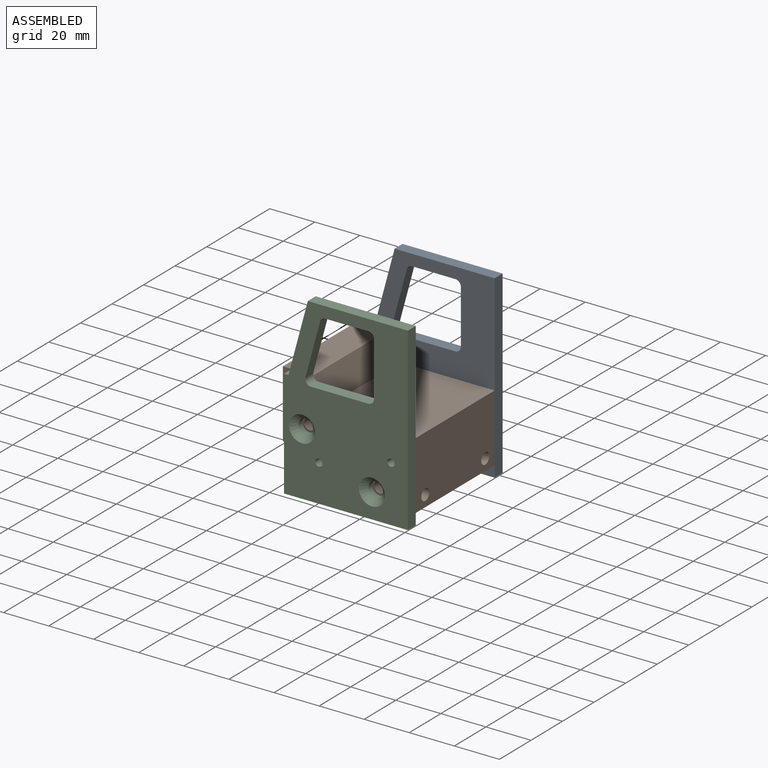
[diagram: assembled view]
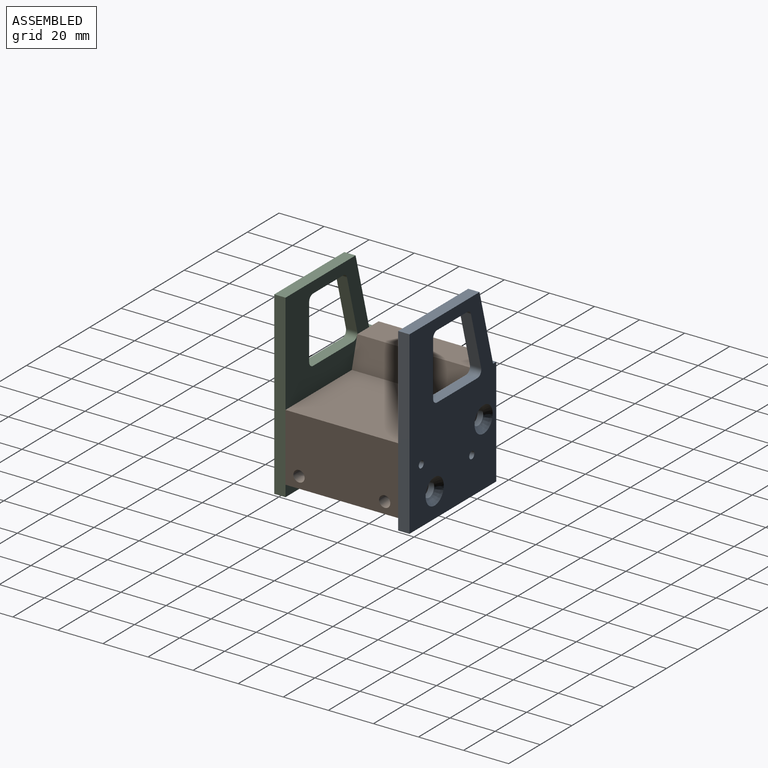
[diagram: assembled view, second angle]
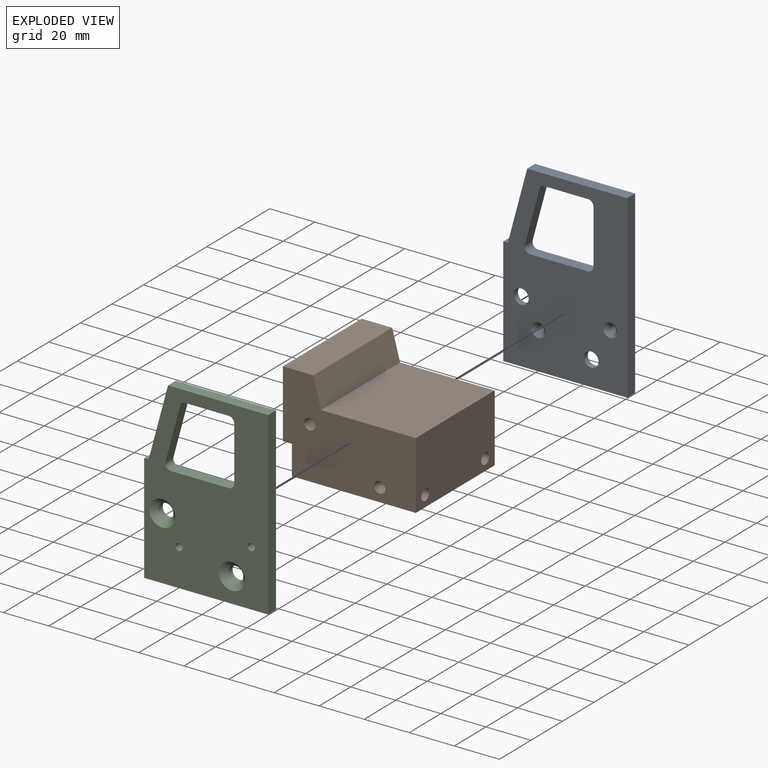
[diagram: exploded view]
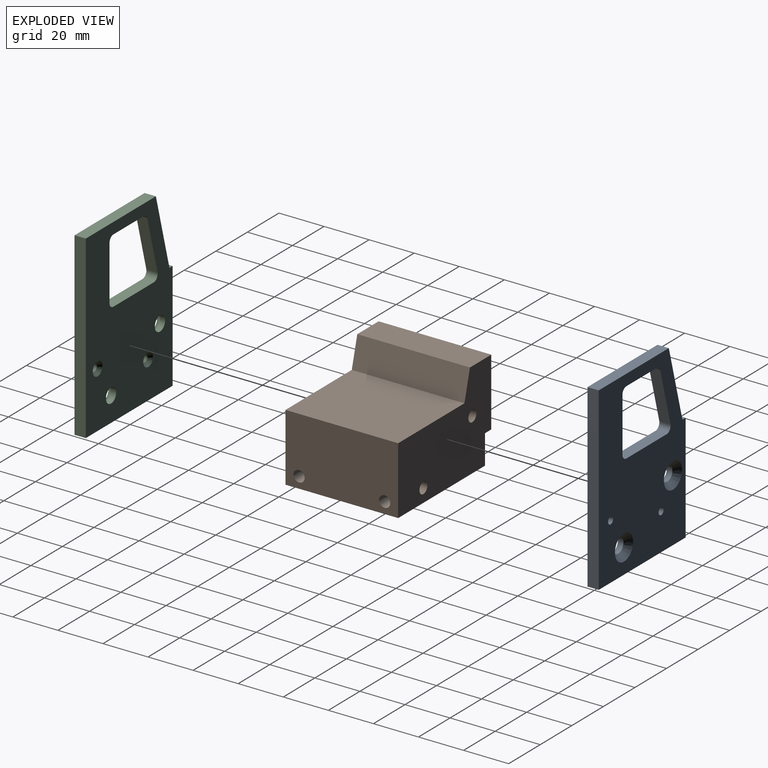
[diagram: exploded view, second angle]
ASSEMBLY  parts=3 mates=2
PART A: 24 faces, bbox 5x80x55 mm
  f0: plane 80x5mm, normal (0,0,1), area 400mm2, adj f1,f17,f18,f19
  f1: plane 55x5mm, normal (0,-1,0), area 275mm2, adj f0,f2,f18,f19
  f2: plane 48x5mm, normal (0,0,-1), area 240mm2, adj f1,f3,f18,f19
  f3: plane 5x2mm, normal (0,1,0), area 10mm2, adj f2,f4,f18,f19
  f4: plane 32x8.6mm, normal (0,0.26,-0.97), area 165.7mm2, adj f3,f17,f18,f19
  f5: cylinder r=2.5mm len=5mm, axis (-1,0,0), area 19.6mm2, adj f6,f12,f18,f19
  f6: plane 19.08x5mm, normal (0,-1,0), area 95.4mm2, adj f5,f7,f18,f19
  f7: cylinder r=2.5mm len=5mm, axis (-1,0,0), area 16.4mm2, adj f6,f8,f18,f19
  f8: plane 24x6.45mm, normal (0,-0.26,0.97), area 124.3mm2, adj f7,f9,f18,f19
  f9: cylinder r=2.5mm len=5mm, axis (-1,0,0), area 22.9mm2, adj f8,f10,f18,f19
  f10: plane 25.53x5mm, normal (0,1,0), area 127.6mm2, adj f9,f11,f18,f19
  f11: cylinder r=2.5mm len=5mm, axis (-1,0,0), area 19.6mm2, adj f10,f12,f18,f19
  f12: plane 24x5mm, normal (0,0,-1), area 120mm2, adj f5,f11,f18,f19
  f13: cylinder r=1.59mm len=3.5mm, axis (-1,0,0), area 34.9mm2, adj f18,f22
  f14: cylinder r=3.25mm len=6.5mm, axis (-1,0,0), area 51.1mm2, adj f19,f20
  f15: cylinder r=1.59mm len=3.5mm, axis (-1,0,0), area 34.9mm2, adj f18,f23
  f16: cylinder r=3.25mm len=6.5mm, axis (-1,0,0), area 51.1mm2, adj f19,f21
  f17: plane 44.4x5mm, normal (0,1,0), area 222mm2, adj f0,f4,f18,f19
  f18: plane 80x55mm, normal (1,0,0), area 3186.3mm2, adj f0,f1,f2,f3,f4,f5,f6,f7
  f19: plane 80x55mm, normal (-1,0,0), area 3283.6mm2, adj f0,f1,f2,f3,f4,f5,f6,f7
  f20: cone r=3.25mm half-angle=45deg, axis (1,0,0), area 100mm2, adj f14,f18
  f21: cone r=3.25mm half-angle=45deg, axis (1,0,0), area 100mm2, adj f16,f18
  f22: cone r=3.09mm half-angle=45deg, axis (-1,0,0), area 31.2mm2, adj f13,f19
  f23: cone r=3.09mm half-angle=45deg, axis (-1,0,0), area 31.2mm2, adj f15,f19
PART B: 98 faces, bbox 60x50x43 mm
  f0: plane 25x1.07mm, normal (-1,0,0), area 26.7mm2, adj f15,f16,f57,f95
  f1: plane 25x1.07mm, normal (-1,0,0), area 26.7mm2, adj f15,f16,f92,f96
  f2: plane 25x1.07mm, normal (-1,0,0), area 26.7mm2, adj f15,f16,f89,f93
  f3: plane 25x1.07mm, normal (-1,0,0), area 26.7mm2, adj f15,f16,f86,f90
  f4: plane 25x1.07mm, normal (-1,0,0), area 26.7mm2, adj f15,f16,f83,f87
  f5: plane 25x1.07mm, normal (-1,0,0), area 26.7mm2, adj f15,f16,f80,f84
  f6: plane 25x1.07mm, normal (-1,0,0), area 26.7mm2, adj f15,f16,f77,f81
  f7: plane 25x1.07mm, normal (-1,0,0), area 26.7mm2, adj f15,f16,f74,f78
  f8: plane 25x1.07mm, normal (-1,0,0), area 26.7mm2, adj f15,f16,f52,f72
  f9: plane 25x1.07mm, normal (-1,0,0), area 26.7mm2, adj f15,f16,f69,f71
  f10: plane 25x1.07mm, normal (-1,0,0), area 26.7mm2, adj f15,f16,f66,f68
  f11: plane 25x1.07mm, normal (-1,0,0), area 26.7mm2, adj f15,f16,f63,f65
  f12: plane 25x1.07mm, normal (-1,0,0), area 26.7mm2, adj f15,f16,f60,f62
  f13: plane 25x1.07mm, normal (-1,0,0), area 26.7mm2, adj f15,f16,f59,f75
  f14: plane 25x1.07mm, normal (-1,0,0), area 26.7mm2, adj f15,f16,f54,f56
  f15: plane 30x1mm, normal (0,0,1), area 23.2mm2, adj f0,f1,f2,f3,f4,f5,f6,f7
  f16: plane 50x5mm, normal (0,0,-1), area 223.2mm2, adj f0,f1,f2,f3,f4,f5,f6,f7
  f17: plane 59x43mm, normal (0,-1,0), area 1877.1mm2, adj f16,f21,f22,f23,f24,f25,f26,f27
  f18: plane 59x43mm, normal (0,1,0), area 1877.1mm2, adj f16,f21,f22,f23,f24,f25,f26,f27
  f19: cylinder r=2.5mm len=11mm, axis (0,0,-1), area 129.8mm2, adj f22,f40,f45
  f20: cylinder r=2.5mm len=11mm, axis (0,0,-1), area 129.8mm2, adj f22,f41,f43
  f21: plane 50x13mm, normal (-1,0,0), area 610.7mm2, adj f16,f17,f18,f22,f47,f49
  f22: plane 55x50mm, normal (0,0,-1), area 2671.5mm2, adj f17,f18,f19,f20,f21,f23,f37,f39
  f23: plane 50x30mm, normal (1,0,0), area 1460.7mm2, adj f17,f18,f22,f24,f43,f45
  f24: plane 50x42mm, normal (0,0,1), area 2100mm2, adj f17,f18,f23,f25
  f25: plane 50x13mm, normal (0.97,0,0.26), area 672.9mm2, adj f17,f18,f24,f26
  f26: plane 50x13.52mm, normal (0,0,1), area 675.8mm2, adj f17,f18,f25,f27
  f27: plane 50x30mm, normal (-1,0,0), area 750mm2, adj f15,f16,f17,f18,f26,f50,f51
  f28: cone r=0mm half-angle=59deg, axis (0,-1,0), area 22.9mm2, adj f29
  f29: cylinder r=2.5mm len=11mm, axis (0,-1,0), area 172.8mm2, adj f17,f28
  f30: cone r=0mm half-angle=59deg, axis (0,-1,0), area 22.9mm2, adj f31
  f31: cylinder r=2.5mm len=11mm, axis (0,-1,0), area 172.8mm2, adj f17,f30
  f32: cone r=0mm half-angle=59deg, axis (0,1,0), area 22.9mm2, adj f33
  f33: cylinder r=2.5mm len=11mm, axis (0,1,0), area 172.8mm2, adj f18,f32
  f34: cone r=0mm half-angle=59deg, axis (0,1,0), area 22.9mm2, adj f35
  f35: cylinder r=2.5mm len=11mm, axis (0,1,0), area 172.8mm2, adj f18,f34
  f36: cone r=0mm half-angle=59deg, axis (0,0,-1), area 22.9mm2, adj f37
  f37: cylinder r=2.5mm len=11mm, axis (0,0,-1), area 172.8mm2, adj f22,f36
  f38: cone r=0mm half-angle=59deg, axis (0,0,-1), area 22.9mm2, adj f39
  f39: cylinder r=2.5mm len=11mm, axis (0,0,-1), area 172.8mm2, adj f22,f38
  f40: cone r=0mm half-angle=59deg, axis (0,0,-1), area 22.9mm2, adj f19
  f41: cone r=0mm half-angle=59deg, axis (0,0,-1), area 22.9mm2, adj f20
  f42: cone r=0mm half-angle=59deg, axis (1,0,0), area 22.9mm2, adj f43
  f43: cylinder r=2.5mm len=11mm, axis (1,0,0), area 129.8mm2, adj f20,f23,f42
  f44: cone r=0mm half-angle=59deg, axis (1,0,0), area 22.9mm2, adj f45
  f45: cylinder r=2.5mm len=11mm, axis (1,0,0), area 129.8mm2, adj f19,f23,f44
  f46: cone r=0mm half-angle=59deg, axis (-1,0,0), area 22.9mm2, adj f47
  f47: cylinder r=2.5mm len=11mm, axis (-1,0,0), area 172.8mm2, adj f21,f46
  f48: cone r=0mm half-angle=59deg, axis (-1,0,0), area 22.9mm2, adj f49
  f49: cylinder r=2.5mm len=11mm, axis (-1,0,0), area 172.8mm2, adj f21,f48
  f50: plane 25x0.14mm, normal (0,1,0), area 3.4mm2, adj f15,f16,f27,f55
  f51: plane 25x0.14mm, normal (0,-1,0), area 3.4mm2, adj f15,f16,f27,f53
  f52: plane 25x0.81mm, normal (-0.42,-0.91,0), area 22.2mm2, adj f8,f15,f16,f53
  f53: cylinder r=0.1mm len=25mm, axis (0,0,-1), area 2.8mm2, adj f15,f16,f51,f52
  f54: plane 25x0.81mm, normal (-0.42,0.91,0), area 22.2mm2, adj f14,f15,f16,f55
  f55: cylinder r=0.1mm len=25mm, axis (0,0,-1), area 2.8mm2, adj f15,f16,f50,f54
  f56: plane 25x0.81mm, normal (-0.42,-0.91,0), area 22.2mm2, adj f14,f15,f16,f58
  f57: plane 25x0.81mm, normal (-0.42,0.91,0), area 22.2mm2, adj f0,f15,f16,f58
  f58: cylinder r=0.1mm len=25mm, axis (0,0,-1), area 5.7mm2, adj f15,f16,f56,f57
  f59: plane 25x0.81mm, normal (-0.42,-0.91,0), area 22.2mm2, adj f13,f15,f16,f61
  f60: plane 25x0.81mm, normal (-0.42,0.91,0), area 22.2mm2, adj f12,f15,f16,f61
  f61: cylinder r=0.1mm len=25mm, axis (0,0,-1), area 5.7mm2, adj f15,f16,f59,f60
  f62: plane 25x0.81mm, normal (-0.42,-0.91,0), area 22.2mm2, adj f12,f15,f16,f64
  f63: plane 25x0.81mm, normal (-0.42,0.91,0), area 22.2mm2, adj f11,f15,f16,f64
  f64: cylinder r=0.1mm len=25mm, axis (0,0,-1), area 5.7mm2, adj f15,f16,f62,f63
  f65: plane 25x0.81mm, normal (-0.42,-0.91,0), area 22.2mm2, adj f11,f15,f16,f67
  f66: plane 25x0.81mm, normal (-0.42,0.91,0), area 22.2mm2, adj f10,f15,f16,f67
  f67: cylinder r=0.1mm len=25mm, axis (0,0,-1), area 5.7mm2, adj f15,f16,f65,f66
  f68: plane 25x0.81mm, normal (-0.42,-0.91,0), area 22.2mm2, adj f10,f15,f16,f70
  f69: plane 25x0.81mm, normal (-0.42,0.91,0), area 22.2mm2, adj f9,f15,f16,f70
  f70: cylinder r=0.1mm len=25mm, axis (0,0,-1), area 5.7mm2, adj f15,f16,f68,f69
  f71: plane 25x0.81mm, normal (-0.42,-0.91,0), area 22.2mm2, adj f9,f15,f16,f73
  f72: plane 25x0.81mm, normal (-0.42,0.91,0), area 22.2mm2, adj f8,f15,f16,f73
  f73: cylinder r=0.1mm len=25mm, axis (0,0,-1), area 5.7mm2, adj f15,f16,f71,f72
  f74: plane 25x0.81mm, normal (-0.42,-0.91,0), area 22.2mm2, adj f7,f15,f16,f76
  f75: plane 25x0.81mm, normal (-0.42,0.91,0), area 22.2mm2, adj f13,f15,f16,f76
  f76: cylinder r=0.1mm len=25mm, axis (0,0,-1), area 5.7mm2, adj f15,f16,f74,f75
  f77: plane 25x0.81mm, normal (-0.42,-0.91,0), area 22.2mm2, adj f6,f15,f16,f79
  f78: plane 25x0.81mm, normal (-0.42,0.91,0), area 22.2mm2, adj f7,f15,f16,f79
  f79: cylinder r=0.1mm len=25mm, axis (0,0,-1), area 5.7mm2, adj f15,f16,f77,f78
  f80: plane 25x0.81mm, normal (-0.42,-0.91,0), area 22.2mm2, adj f5,f15,f16,f82
  f81: plane 25x0.81mm, normal (-0.42,0.91,0), area 22.2mm2, adj f6,f15,f16,f82
  f82: cylinder r=0.1mm len=25mm, axis (0,0,-1), area 5.7mm2, adj f15,f16,f80,f81
  f83: plane 25x0.81mm, normal (-0.42,-0.91,0), area 22.2mm2, adj f4,f15,f16,f85
  f84: plane 25x0.81mm, normal (-0.42,0.91,0), area 22.2mm2, adj f5,f15,f16,f85
  f85: cylinder r=0.1mm len=25mm, axis (0,0,-1), area 5.7mm2, adj f15,f16,f83,f84
  f86: plane 25x0.81mm, normal (-0.42,-0.91,0), area 22.2mm2, adj f3,f15,f16,f88
  f87: plane 25x0.81mm, normal (-0.42,0.91,0), area 22.2mm2, adj f4,f15,f16,f88
  f88: cylinder r=0.1mm len=25mm, axis (0,0,-1), area 5.7mm2, adj f15,f16,f86,f87
  f89: plane 25x0.81mm, normal (-0.42,-0.91,0), area 22.2mm2, adj f2,f15,f16,f91
  f90: plane 25x0.81mm, normal (-0.42,0.91,0), area 22.2mm2, adj f3,f15,f16,f91
  f91: cylinder r=0.1mm len=25mm, axis (0,0,-1), area 5.7mm2, adj f15,f16,f89,f90
  f92: plane 25x0.81mm, normal (-0.42,-0.91,0), area 22.2mm2, adj f1,f15,f16,f94
  f93: plane 25x0.81mm, normal (-0.42,0.91,0), area 22.2mm2, adj f2,f15,f16,f94
  f94: cylinder r=0.1mm len=25mm, axis (0,0,-1), area 5.7mm2, adj f15,f16,f92,f93
  f95: plane 25x0.81mm, normal (-0.42,-0.91,0), area 22.2mm2, adj f0,f15,f16,f97
  f96: plane 25x0.81mm, normal (-0.42,0.91,0), area 22.2mm2, adj f1,f15,f16,f97
  f97: cylinder r=0.1mm len=25mm, axis (0,0,-1), area 5.7mm2, adj f15,f16,f95,f96
PART C: 24 faces, bbox 5x80x55 mm
  f0: plane 55x5mm, normal (0,-1,0), area 275mm2, adj f1,f17,f18,f19
  f1: plane 80x5mm, normal (0,0,-1), area 400mm2, adj f0,f2,f18,f19
  f2: plane 44.4x5mm, normal (0,1,0), area 222mm2, adj f1,f3,f18,f19
  f3: plane 32x8.6mm, normal (0,0.26,0.97), area 165.7mm2, adj f2,f4,f18,f19
  f4: plane 5x2mm, normal (0,1,0), area 10mm2, adj f3,f17,f18,f19
  f5: cylinder r=2.5mm len=5mm, axis (-1,0,0), area 22.9mm2, adj f6,f12,f18,f19
  f6: plane 24x6.45mm, normal (0,-0.26,-0.97), area 124.3mm2, adj f5,f7,f18,f19
  f7: cylinder r=2.5mm len=5mm, axis (-1,0,0), area 16.4mm2, adj f6,f8,f18,f19
  f8: plane 19.08x5mm, normal (0,-1,0), area 95.4mm2, adj f7,f9,f18,f19
  f9: cylinder r=2.5mm len=5mm, axis (-1,0,0), area 19.6mm2, adj f8,f10,f18,f19
  f10: plane 24x5mm, normal (0,0,1), area 120mm2, adj f9,f11,f18,f19
  f11: cylinder r=2.5mm len=5mm, axis (-1,0,0), area 19.6mm2, adj f10,f12,f18,f19
  f12: plane 25.53x5mm, normal (0,1,0), area 127.6mm2, adj f5,f11,f18,f19
  f13: cylinder r=1.59mm len=3.5mm, axis (-1,0,0), area 34.9mm2, adj f18,f20
  f14: cylinder r=3.25mm len=6.5mm, axis (-1,0,0), area 51.1mm2, adj f19,f23
  f15: cylinder r=3.25mm len=6.5mm, axis (-1,0,0), area 51.1mm2, adj f19,f22
  f16: cylinder r=1.59mm len=3.5mm, axis (-1,0,0), area 34.9mm2, adj f18,f21
  f17: plane 48x5mm, normal (0,0,1), area 240mm2, adj f0,f4,f18,f19
  f18: plane 80x55mm, normal (1,0,0), area 3186.3mm2, adj f0,f1,f2,f3,f4,f5,f6,f7
  f19: plane 80x55mm, normal (-1,0,0), area 3283.6mm2, adj f0,f1,f2,f3,f4,f5,f6,f7
  f20: cone r=3.09mm half-angle=45deg, axis (-1,0,0), area 31.2mm2, adj f13,f19
  f21: cone r=3.09mm half-angle=45deg, axis (-1,0,0), area 31.2mm2, adj f16,f19
  f22: cone r=3.25mm half-angle=45deg, axis (1,0,0), area 100mm2, adj f15,f18
  f23: cone r=3.25mm half-angle=45deg, axis (1,0,0), area 100mm2, adj f14,f18
PLACE A rot(axis=(0.58,0.58,0.58),120deg) t=(21.87,14.28,-35.54)mm
PLACE B t=(-33.13,14.28,-30.54)mm fixed
PLACE C rot(axis=(0.58,-0.58,-0.58),120deg) t=(47.74,-35.72,-35.54)mm
MATE fastened B.f30 <-> C.f15  axis (0,-1,0) through (-25.13,-35.72,-7.54)mm
MATE fastened A.f14 <-> B.f28  axis (0,-1,0) through (5.87,14.28,-24.54)mm
